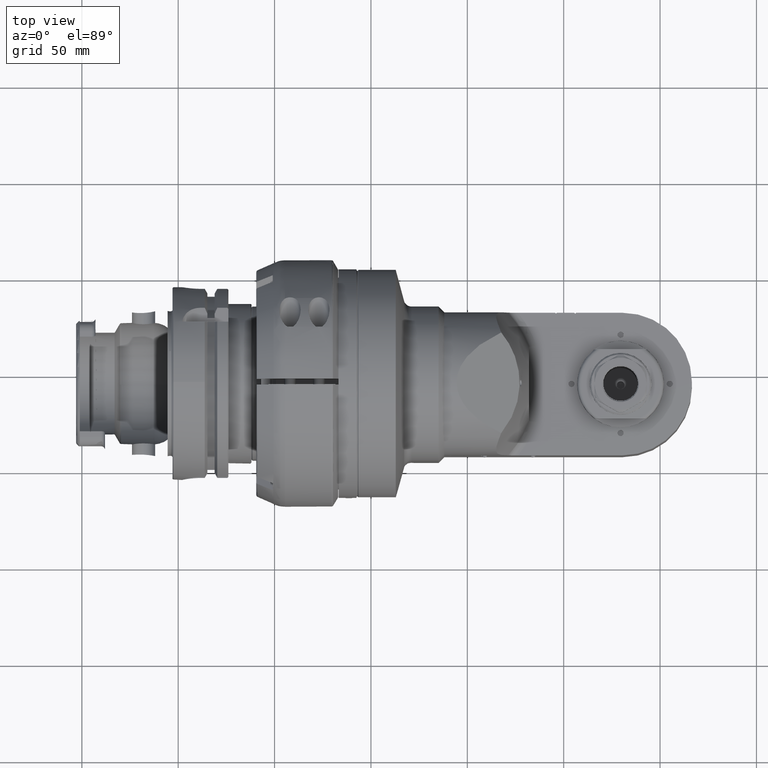
[diagram: clean part render]
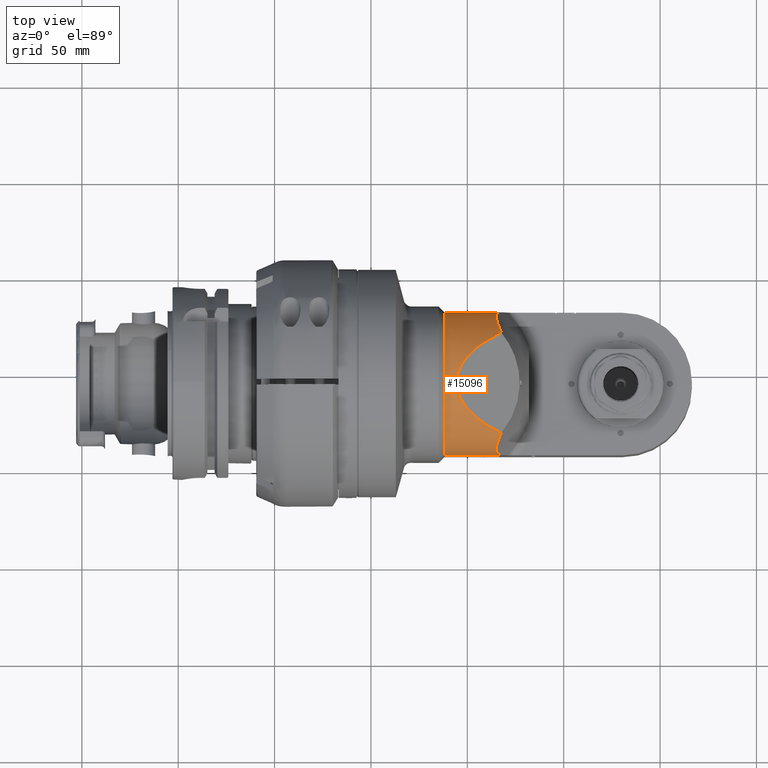
[diagram: same view with one face highlighted and labeled with its STEP entity id]
A machine part, top view. The second image highlights one B-rep face of the part: STEP entity #15096.
In plain terms, the highlighted cylindrical surface (partial cylindrical patch) has radius 37 mm, axis along (-1, 0, 0).
Its self-contained STEP definition (entity closure, byte-faithful):
#65=ELLIPSE('',#16507,87.5494585766384,37.);
#261=B_SPLINE_CURVE_WITH_KNOTS('',3,(#29490,#29491,#29492,#29493,#29494,
#29495,#29496,#29497,#29498,#29499,#29500,#29501),.UNSPECIFIED.,.F.,.F.,
(4,2,2,2,2,4),(7.83011745301801,8.13771109030121,8.75014103835727,9.36257098641332,
9.97500093446938,10.7128732792265),.UNSPECIFIED.);
#262=B_SPLINE_CURVE_WITH_KNOTS('',3,(#29504,#29505,#29506,#29507,#29508,
#29509,#29510,#29511,#29512,#29513,#29514,#29515,#29516),.UNSPECIFIED.,
 .F.,.F.,(4,3,2,2,2,4),(-0.737872344757969,0.,0.612429948056057,1.22485989611211,
1.83728984416818,2.14488348145137),.UNSPECIFIED.);
#1132=LINE('',#29352,#2299);
#1154=LINE('',#29562,#2321);
#2299=VECTOR('',#19640,29.4627487001998);
#2321=VECTOR('',#19716,29.4627486990198);
#3037=CYLINDRICAL_SURFACE('',#16505,37.);
#4177=FACE_OUTER_BOUND('',#5090,.T.);
#5090=EDGE_LOOP('',(#12625,#12626,#12627,#12628,#12629,#12630));
#5991=CIRCLE('',#16506,37.);
#7066=VERTEX_POINT('',#29347);
#7067=VERTEX_POINT('',#29351);
#7101=VERTEX_POINT('',#29485);
#7102=VERTEX_POINT('',#29489);
#7103=VERTEX_POINT('',#29502);
#7106=VERTEX_POINT('',#29559);
#9063=EDGE_CURVE('',#7067,#7066,#1132,.T.);
#9106=EDGE_CURVE('',#7102,#7101,#261,.T.);
#9108=EDGE_CURVE('',#7066,#7103,#262,.T.);
#9111=EDGE_CURVE('',#7067,#7106,#5991,.T.);
#9112=EDGE_CURVE('',#7102,#7103,#65,.T.);
#9113=EDGE_CURVE('',#7101,#7106,#1154,.T.);
#12625=ORIENTED_EDGE('',*,*,#9111,.F.);
#12626=ORIENTED_EDGE('',*,*,#9063,.T.);
#12627=ORIENTED_EDGE('',*,*,#9108,.T.);
#12628=ORIENTED_EDGE('',*,*,#9112,.F.);
#12629=ORIENTED_EDGE('',*,*,#9106,.T.);
#12630=ORIENTED_EDGE('',*,*,#9113,.T.);
#15096=ADVANCED_FACE('',(#4177),#3037,.T.);
#16505=AXIS2_PLACEMENT_3D('',#29558,#19710,#19711);
#16506=AXIS2_PLACEMENT_3D('',#29560,#19712,#19713);
#16507=AXIS2_PLACEMENT_3D('',#29561,#19714,#19715);
#19640=DIRECTION('',(0.999999999999906,-1.38707429277801E-7,4.11156570917102E-7));
#19710=DIRECTION('center_axis',(-1.,0.,0.));
#19711=DIRECTION('ref_axis',(0.,-1.,0.));
#19712=DIRECTION('center_axis',(-1.,0.,0.));
#19713=DIRECTION('ref_axis',(0.,0.,-1.));
#19714=DIRECTION('center_axis',(0.422618261740719,-0.906307787036641,0.));
#19715=DIRECTION('ref_axis',(-0.906307787036641,-0.422618261740719,0.));
#19716=DIRECTION('',(-0.999999999999906,1.38707650754601E-7,4.11157248129002E-7));
#29347=CARTESIAN_POINT('',(86.4626845689849,-4.01972997164142E-6,-36.9999959620745));
#29351=CARTESIAN_POINT('',(57.,0.,-37.));
#29352=CARTESIAN_POINT('',(57.,0.,-37.));
#29485=CARTESIAN_POINT('',(86.4626845689816,-4.01973773215539E-6,36.9999959620687));
#29489=CARTESIAN_POINT('',(86.55653924509,-26.21755940146,26.10822818636));
#29490=CARTESIAN_POINT('Ctrl Pts',(86.5565392450911,-26.2175594014586,26.108228186359));
#29491=CARTESIAN_POINT('Ctrl Pts',(86.2768888526062,-25.4966435956153,26.8321629102412));
#29492=CARTESIAN_POINT('Ctrl Pts',(86.001102874982,-24.7351619229832,27.5366436284816));
#29493=CARTESIAN_POINT('Ctrl Pts',(85.2173472460032,-22.3485524778202,29.561511092058));
#29494=CARTESIAN_POINT('Ctrl Pts',(84.7507205209947,-20.6141001046456,30.7992582378357));
#29495=CARTESIAN_POINT('Ctrl Pts',(84.0888161937487,-16.9442516970133,32.9609974858682));
#29496=CARTESIAN_POINT('Ctrl Pts',(83.8958462434458,-15.0038043822077,33.8873230671693));
#29497=CARTESIAN_POINT('Ctrl Pts',(83.8909389532353,-11.0483389589965,35.3751186117763));
#29498=CARTESIAN_POINT('Ctrl Pts',(84.0804611364451,-9.03330008657114,35.9365378272746));
#29499=CARTESIAN_POINT('Ctrl Pts',(84.8820845767981,-4.68566056015245,36.7818189686342));
#29500=CARTESIAN_POINT('Ctrl Pts',(85.5762747721496,-2.32203194516505,36.9999997481057));
#29501=CARTESIAN_POINT('Ctrl Pts',(86.462684553342,-4.01376790637453E-6,
36.9999999999998));
#29502=CARTESIAN_POINT('',(86.55653924509,-26.21755940146,-26.10822818636));
#29504=CARTESIAN_POINT('Ctrl Pts',(86.462684553345,-4.01376003711373E-6,
-36.9999999999998));
#29505=CARTESIAN_POINT('Ctrl Pts',(85.5762747721511,-2.3220319451597,-36.9999997481062));
#29506=CARTESIAN_POINT('Ctrl Pts',(84.8820845767986,-4.68566056014976,-36.7818189686347));
#29507=CARTESIAN_POINT('Ctrl Pts',(84.4440376515328,-7.06142707450374,-36.3199153037485));
#29508=CARTESIAN_POINT('Ctrl Pts',(84.0804611364451,-9.03330008657114,-35.9365378272746));
#29509=CARTESIAN_POINT('Ctrl Pts',(83.8909389532353,-11.0483389589965,-35.3751186117764));
#29510=CARTESIAN_POINT('Ctrl Pts',(83.8958462434458,-15.0038043822077,-33.8873230671693));
#29511=CARTESIAN_POINT('Ctrl Pts',(84.0888161937486,-16.9442516970132,-32.9609974858682));
#29512=CARTESIAN_POINT('Ctrl Pts',(84.7507205209947,-20.6141001046456,-30.7992582378357));
#29513=CARTESIAN_POINT('Ctrl Pts',(85.2173472460032,-22.3485524778202,-29.561511092058));
#29514=CARTESIAN_POINT('Ctrl Pts',(86.0011028749819,-24.7351619229832,-27.5366436284815));
#29515=CARTESIAN_POINT('Ctrl Pts',(86.2768888526062,-25.4966435956153,-26.8321629102412));
#29516=CARTESIAN_POINT('Ctrl Pts',(86.5565392450911,-26.2175594014586,-26.108228186359));
#29558=CARTESIAN_POINT('Origin',(44.,0.,0.));
#29559=CARTESIAN_POINT('',(57.,0.,37.));
#29560=CARTESIAN_POINT('Origin',(57.,0.,0.));
#29561=CARTESIAN_POINT('Origin',(142.780276820378,0.,0.));
#29562=CARTESIAN_POINT('',(86.46274869902,-4.086708657569E-6,36.99998788618));